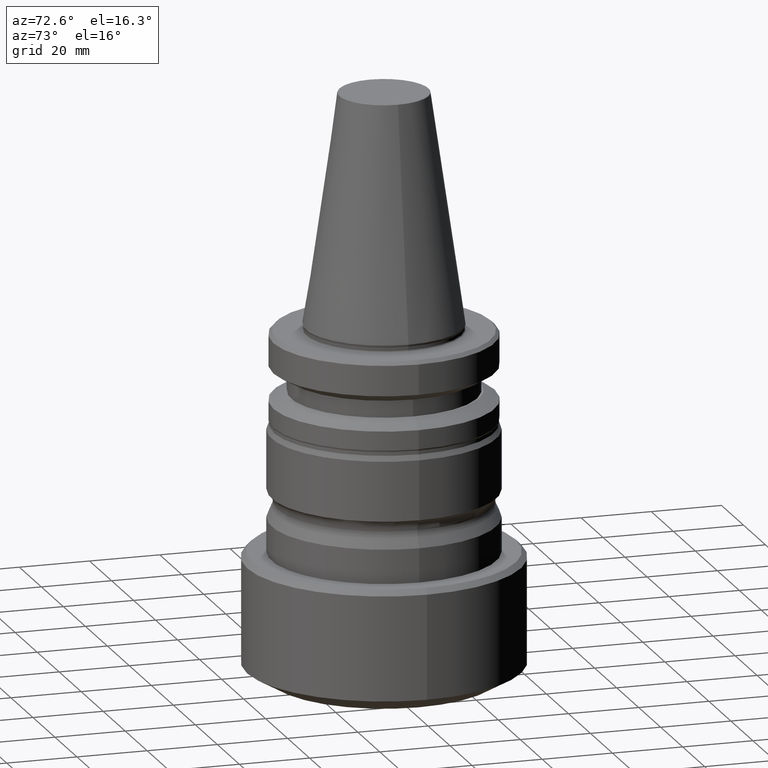
[diagram: clean part render]
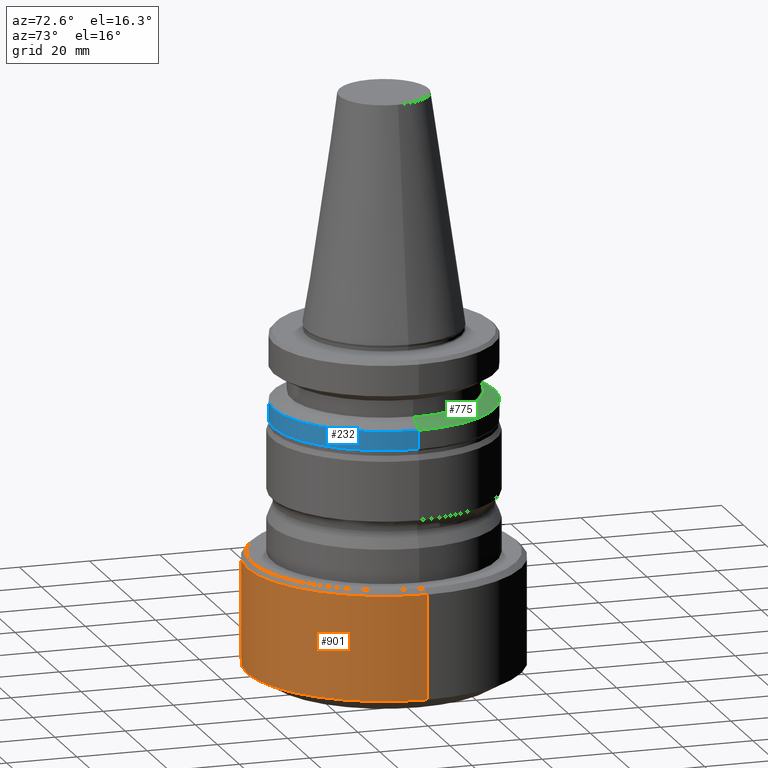
[diagram: same view with three faces highlighted in distinct colors, each labeled with its STEP entity id]
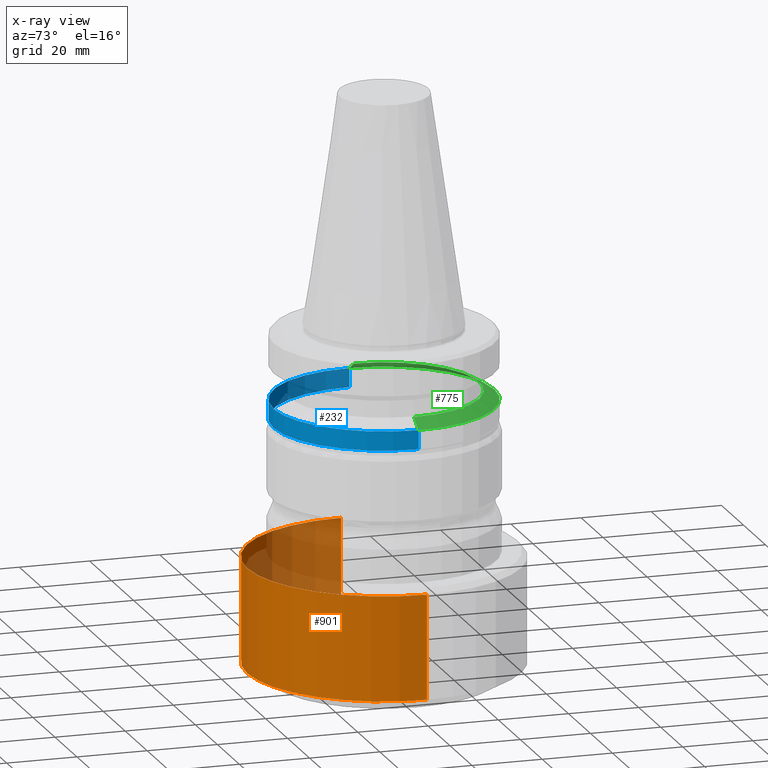
[diagram: x-ray of the same camera — body ghosted, the three highlighted faces saturated]
A machine part, auxiliary view with three faces highlighted in distinct colors.
The next image is the same camera in x-ray (body ghosted, the three faces saturated) — at least one of them is partly hidden behind the body in this view.
Their STEP definitions:

[orange] entity #901 — the highlighted cylindrical surface (partial cylindrical patch) has radius 39 mm, axis along (-0, -0, 1).
#31 = EDGE_CURVE ( 'NONE', #402, #173, #533, .T. ) ;
#99 = DIRECTION ( 'NONE',  ( 1.000000000000000000, 0.0000000000000000000, 0.0000000000000000000 ) ) ;
#137 = ORIENTED_EDGE ( 'NONE', *, *, #1047, .T. ) ;
#167 = AXIS2_PLACEMENT_3D ( 'NONE', #192, #863, #99 ) ;
#168 = CARTESIAN_POINT ( 'NONE',  ( -39.00000000000000000, 4.776122516674677900E-015, 85.65538088479452500 ) ) ;
#173 = VERTEX_POINT ( 'NONE', #335 ) ;
#192 = CARTESIAN_POINT ( 'NONE',  ( 0.0000000000000000000, 0.0000000000000000000, 85.65538088479452500 ) ) ;
#248 = EDGE_CURVE ( 'NONE', #1322, #402, #1021, .T. ) ;
#277 = DIRECTION ( 'NONE',  ( 1.000000000000000000, 0.0000000000000000000, 0.0000000000000000000 ) ) ;
#283 = DIRECTION ( 'NONE',  ( -0.0000000000000000000, -0.0000000000000000000, 1.000000000000000000 ) ) ;
#319 = VECTOR ( 'NONE', #1170, 1000.000000000000000 ) ;
#335 = CARTESIAN_POINT ( 'NONE',  ( 39.00000000000000000, 0.0000000000000000000, -66.09835274459428000 ) ) ;
#338 = CYLINDRICAL_SURFACE ( 'NONE', #167, 39.00000000000000000 ) ;
#402 = VERTEX_POINT ( 'NONE', #1177 ) ;
#451 = EDGE_LOOP ( 'NONE', ( #479, #137, #491, #939 ) ) ;
#479 = ORIENTED_EDGE ( 'NONE', *, *, #248, .F. ) ;
#491 = ORIENTED_EDGE ( 'NONE', *, *, #1105, .T. ) ;
#497 = VECTOR ( 'NONE', #500, 1000.000000000000000 ) ;
#500 = DIRECTION ( 'NONE',  ( -0.0000000000000000000, -0.0000000000000000000, 1.000000000000000000 ) ) ;
#533 = CIRCLE ( 'NONE', #1323, 39.00000000000000000 ) ;
#574 = CARTESIAN_POINT ( 'NONE',  ( -39.00000000000000000, 4.776122516674677900E-015, -95.84143080639428500 ) ) ;
#678 = DIRECTION ( 'NONE',  ( 1.000000000000000000, 0.0000000000000000000, 0.0000000000000000000 ) ) ;
#735 = LINE ( 'NONE', #991, #319 ) ;
#774 = VERTEX_POINT ( 'NONE', #815 ) ;
#815 = CARTESIAN_POINT ( 'NONE',  ( 39.00000000000000000, 0.0000000000000000000, -95.84143080639428500 ) ) ;
#863 = DIRECTION ( 'NONE',  ( -0.0000000000000000000, -0.0000000000000000000, 1.000000000000000000 ) ) ;
#895 = DIRECTION ( 'NONE',  ( -0.0000000000000000000, -0.0000000000000000000, 1.000000000000000000 ) ) ;
#901 = ADVANCED_FACE ( 'NONE', ( #1261 ), #338, .T. ) ;
#919 = AXIS2_PLACEMENT_3D ( 'NONE', #1218, #283, #277 ) ;
#939 = ORIENTED_EDGE ( 'NONE', *, *, #31, .F. ) ;
#991 = CARTESIAN_POINT ( 'NONE',  ( 39.00000000000000000, 0.0000000000000000000, 85.65538088479452500 ) ) ;
#1021 = LINE ( 'NONE', #168, #497 ) ;
#1047 = EDGE_CURVE ( 'NONE', #1322, #774, #1329, .T. ) ;
#1105 = EDGE_CURVE ( 'NONE', #774, #173, #735, .T. ) ;
#1170 = DIRECTION ( 'NONE',  ( -0.0000000000000000000, -0.0000000000000000000, 1.000000000000000000 ) ) ;
#1177 = CARTESIAN_POINT ( 'NONE',  ( -39.00000000000000000, 4.776122516674677900E-015, -66.09835274459428000 ) ) ;
#1218 = CARTESIAN_POINT ( 'NONE',  ( 0.0000000000000000000, 0.0000000000000000000, -95.84143080639428500 ) ) ;
#1246 = CARTESIAN_POINT ( 'NONE',  ( 0.0000000000000000000, 0.0000000000000000000, -66.09835274459428000 ) ) ;
#1261 = FACE_OUTER_BOUND ( 'NONE', #451, .T. ) ;
#1322 = VERTEX_POINT ( 'NONE', #574 ) ;
#1323 = AXIS2_PLACEMENT_3D ( 'NONE', #1246, #895, #678 ) ;
#1329 = CIRCLE ( 'NONE', #919, 39.00000000000000000 ) ;

[blue] entity #232 — the highlighted cylindrical surface (partial cylindrical patch) has radius 31.5 mm, axis along (-0, -0, 1).
#23 = CARTESIAN_POINT ( 'NONE',  ( 0.0000000000000000000, 0.0000000000000000000, -27.00184884169831900 ) ) ;
#67 = EDGE_LOOP ( 'NONE', ( #786, #1264, #400, #309 ) ) ;
#74 = CARTESIAN_POINT ( 'NONE',  ( 31.49999999999997200, 0.0000000000000000000, 108.0473503848535300 ) ) ;
#148 = EDGE_CURVE ( 'NONE', #949, #663, #690, .T. ) ;
#201 = EDGE_CURVE ( 'NONE', #663, #510, #648, .T. ) ;
#227 = CARTESIAN_POINT ( 'NONE',  ( -31.49999999999997200, 3.857637417314159500E-015, 108.0473503848535300 ) ) ;
#232 = ADVANCED_FACE ( 'NONE', ( #1337 ), #243, .T. ) ;
#243 = CYLINDRICAL_SURFACE ( 'NONE', #318, 31.49999999999997200 ) ;
#271 = CARTESIAN_POINT ( 'NONE',  ( 0.0000000000000000000, 0.0000000000000000000, 108.0473503848535300 ) ) ;
#309 = ORIENTED_EDGE ( 'NONE', *, *, #1355, .F. ) ;
#318 = AXIS2_PLACEMENT_3D ( 'NONE', #271, #634, #788 ) ;
#400 = ORIENTED_EDGE ( 'NONE', *, *, #201, .T. ) ;
#419 = CARTESIAN_POINT ( 'NONE',  ( 31.49999999999997200, 0.0000000000000000000, -27.00184884169831900 ) ) ;
#443 = DIRECTION ( 'NONE',  ( -0.0000000000000000000, -0.0000000000000000000, 1.000000000000000000 ) ) ;
#504 = CARTESIAN_POINT ( 'NONE',  ( 0.0000000000000000000, 0.0000000000000000000, -21.60199084801472900 ) ) ;
#510 = VERTEX_POINT ( 'NONE', #955 ) ;
#595 = DIRECTION ( 'NONE',  ( -0.0000000000000000000, -0.0000000000000000000, 1.000000000000000000 ) ) ;
#634 = DIRECTION ( 'NONE',  ( -0.0000000000000000000, -0.0000000000000000000, 1.000000000000000000 ) ) ;
#648 = LINE ( 'NONE', #74, #1157 ) ;
#663 = VERTEX_POINT ( 'NONE', #419 ) ;
#690 = CIRCLE ( 'NONE', #860, 31.49999999999997200 ) ;
#729 = DIRECTION ( 'NONE',  ( -0.0000000000000000000, -0.0000000000000000000, 1.000000000000000000 ) ) ;
#738 = EDGE_CURVE ( 'NONE', #949, #984, #868, .T. ) ;
#786 = ORIENTED_EDGE ( 'NONE', *, *, #738, .F. ) ;
#788 = DIRECTION ( 'NONE',  ( 1.000000000000000000, 0.0000000000000000000, 0.0000000000000000000 ) ) ;
#860 = AXIS2_PLACEMENT_3D ( 'NONE', #23, #443, #1316 ) ;
#868 = LINE ( 'NONE', #227, #1012 ) ;
#949 = VERTEX_POINT ( 'NONE', #1377 ) ;
#955 = CARTESIAN_POINT ( 'NONE',  ( 31.49999999999997200, 0.0000000000000000000, -21.60199084801472900 ) ) ;
#984 = VERTEX_POINT ( 'NONE', #1306 ) ;
#1012 = VECTOR ( 'NONE', #729, 1000.000000000000000 ) ;
#1041 = DIRECTION ( 'NONE',  ( -0.0000000000000000000, -0.0000000000000000000, 1.000000000000000000 ) ) ;
#1157 = VECTOR ( 'NONE', #1041, 1000.000000000000000 ) ;
#1205 = AXIS2_PLACEMENT_3D ( 'NONE', #504, #595, #1352 ) ;
#1264 = ORIENTED_EDGE ( 'NONE', *, *, #148, .T. ) ;
#1306 = CARTESIAN_POINT ( 'NONE',  ( -31.49999999999997200, 3.857637417314159500E-015, -21.60199084801472900 ) ) ;
#1316 = DIRECTION ( 'NONE',  ( 1.000000000000000000, 0.0000000000000000000, 0.0000000000000000000 ) ) ;
#1328 = CIRCLE ( 'NONE', #1205, 31.49999999999997200 ) ;
#1337 = FACE_OUTER_BOUND ( 'NONE', #67, .T. ) ;
#1352 = DIRECTION ( 'NONE',  ( 1.000000000000000000, 0.0000000000000000000, 0.0000000000000000000 ) ) ;
#1355 = EDGE_CURVE ( 'NONE', #984, #510, #1328, .T. ) ;
#1377 = CARTESIAN_POINT ( 'NONE',  ( -31.49999999999997200, 3.857637417314159500E-015, -27.00184884169831900 ) ) ;

[green] entity #775 — the highlighted conical surface has half-angle 60 deg.
#5 = ORIENTED_EDGE ( 'NONE', *, *, #429, .T. ) ;
#19 = DIRECTION ( 'NONE',  ( 1.000000000000000000, 0.0000000000000000000, 0.0000000000000000000 ) ) ;
#21 = CARTESIAN_POINT ( 'NONE',  ( 27.16962701892200400, 3.592478546794593700E-015, -19.10184884169785500 ) ) ;
#45 = ORIENTED_EDGE ( 'NONE', *, *, #658, .F. ) ;
#82 = CARTESIAN_POINT ( 'NONE',  ( -31.49999999999997200, 0.0000000000000000000, -21.60199084801472900 ) ) ;
#86 = CARTESIAN_POINT ( 'NONE',  ( -27.16962701892200400, 0.0000000000000000000, -19.10184884169785500 ) ) ;
#136 = VERTEX_POINT ( 'NONE', #21 ) ;
#257 = DIRECTION ( 'NONE',  ( 0.0000000000000000000, 0.0000000000000000000, -1.000000000000000000 ) ) ;
#262 = DIRECTION ( 'NONE',  ( -1.000000000000000000, 0.0000000000000000000, 0.0000000000000000000 ) ) ;
#266 = DIRECTION ( 'NONE',  ( 0.8660254037844363800, 1.060575238724904000E-016, -0.5000000000000041100 ) ) ;
#288 = CARTESIAN_POINT ( 'NONE',  ( 0.0000000000000000000, 0.0000000000000000000, -21.60199084801472900 ) ) ;
#320 = VECTOR ( 'NONE', #828, 1000.000000000000000 ) ;
#374 = CARTESIAN_POINT ( 'NONE',  ( 0.0000000000000000000, 0.0000000000000000000, -21.60199084801472900 ) ) ;
#429 = EDGE_CURVE ( 'NONE', #136, #510, #669, .T. ) ;
#510 = VERTEX_POINT ( 'NONE', #955 ) ;
#580 = CONICAL_SURFACE ( 'NONE', #978, 31.49999999999997200, 1.047197551196593000 ) ;
#621 = EDGE_CURVE ( 'NONE', #510, #984, #638, .T. ) ;
#638 = CIRCLE ( 'NONE', #1371, 31.49999999999997200 ) ;
#653 = CIRCLE ( 'NONE', #967, 27.16962701892200400 ) ;
#658 = EDGE_CURVE ( 'NONE', #1173, #984, #958, .T. ) ;
#665 = DIRECTION ( 'NONE',  ( -0.0000000000000000000, -0.0000000000000000000, 1.000000000000000000 ) ) ;
#669 = LINE ( 'NONE', #673, #782 ) ;
#673 = CARTESIAN_POINT ( 'NONE',  ( 31.49999999999997200, 3.857637417314159500E-015, -21.60199084801472900 ) ) ;
#745 = ORIENTED_EDGE ( 'NONE', *, *, #854, .F. ) ;
#775 = ADVANCED_FACE ( 'NONE', ( #832 ), #580, .T. ) ;
#782 = VECTOR ( 'NONE', #266, 1000.000000000000000 ) ;
#828 = DIRECTION ( 'NONE',  ( -0.8660254037844363800, 0.0000000000000000000, -0.5000000000000041100 ) ) ;
#832 = FACE_OUTER_BOUND ( 'NONE', #1362, .T. ) ;
#854 = EDGE_CURVE ( 'NONE', #136, #1173, #653, .T. ) ;
#944 = CARTESIAN_POINT ( 'NONE',  ( 0.0000000000000000000, 0.0000000000000000000, -19.10184884169785500 ) ) ;
#955 = CARTESIAN_POINT ( 'NONE',  ( 31.49999999999997200, 0.0000000000000000000, -21.60199084801472900 ) ) ;
#958 = LINE ( 'NONE', #82, #320 ) ;
#967 = AXIS2_PLACEMENT_3D ( 'NONE', #944, #1192, #19 ) ;
#978 = AXIS2_PLACEMENT_3D ( 'NONE', #288, #257, #262 ) ;
#984 = VERTEX_POINT ( 'NONE', #1306 ) ;
#1133 = ORIENTED_EDGE ( 'NONE', *, *, #621, .T. ) ;
#1173 = VERTEX_POINT ( 'NONE', #86 ) ;
#1192 = DIRECTION ( 'NONE',  ( -0.0000000000000000000, -0.0000000000000000000, 1.000000000000000000 ) ) ;
#1232 = DIRECTION ( 'NONE',  ( 1.000000000000000000, 0.0000000000000000000, 0.0000000000000000000 ) ) ;
#1306 = CARTESIAN_POINT ( 'NONE',  ( -31.49999999999997200, 3.857637417314159500E-015, -21.60199084801472900 ) ) ;
#1362 = EDGE_LOOP ( 'NONE', ( #745, #5, #1133, #45 ) ) ;
#1371 = AXIS2_PLACEMENT_3D ( 'NONE', #374, #665, #1232 ) ;